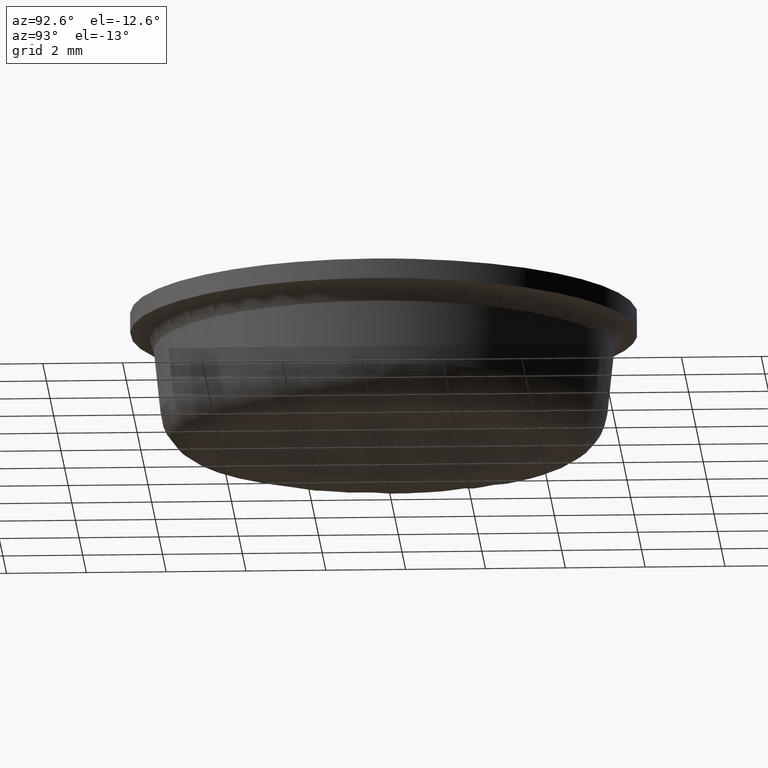
[diagram: clean part render]
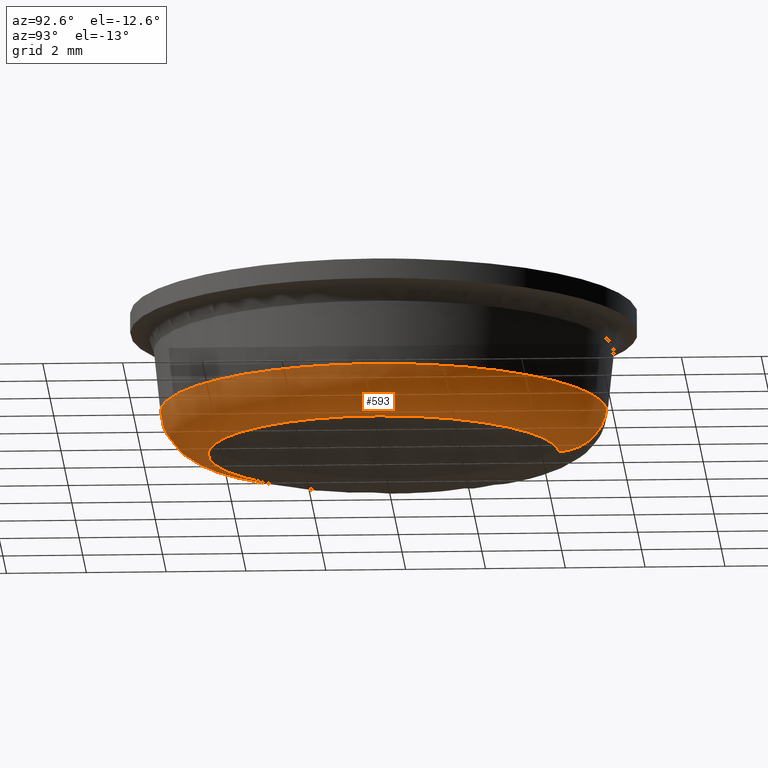
[diagram: same view with one face highlighted and labeled with its STEP entity id]
A machine part, auxiliary view. The second image highlights one B-rep face of the part: STEP entity #593.
In plain terms, the highlighted face is a freeform B-spline surface patch.
Its self-contained STEP definition (entity closure, byte-faithful):
#244=CARTESIAN_POINT('',(0.439207102130143,-5.580712803678572,1.074564380823434));
#245=VERTEX_POINT('',#244);
#246=CARTESIAN_POINT('',(-5.205353386921967,-2.059503371275750,1.074564162696577));
#247=VERTEX_POINT('',#246);
#248=CARTESIAN_POINT('',(0.439207102130142,-5.580712803678572,1.074564380823434));
#249=CARTESIAN_POINT('',(0.219942547773884,-5.597969123065714,1.074564375023362));
#250=CARTESIAN_POINT('',(-1.954018E-009,-5.597969125184395,1.074564368904969));
#251=CARTESIAN_POINT('',(-3.805355849520708,-5.597969161840955,1.074564263047052));
#252=CARTESIAN_POINT('',(-5.205353386921967,-2.059503371275750,1.074564162696577));
#260=(BOUNDED_CURVE()B_SPLINE_CURVE(2,(#248,#249,#250,#251,#252),.UNSPECIFIED.,.F.,.U.)B_SPLINE_CURVE_WITH_KNOTS((3,2,3),(0.736331438645305,0.750000000000000,0.937532633986745),.UNSPECIFIED.)CURVE()GEOMETRIC_REPRESENTATION_ITEM()RATIONAL_B_SPLINE_CURVE((0.969723644193632,0.983986284273097,1.0,0.780291852796229,0.890203286020223))REPRESENTATION_ITEM(''));
#261=EDGE_CURVE('',#245,#247,#260,.T.);
#321=CARTESIAN_POINT('',(-5.597969254135790,0.0,1.074565650878980));
#322=VERTEX_POINT('',#321);
#323=CARTESIAN_POINT('',(-5.205353386921967,-2.059503371275750,1.074564162696577));
#324=CARTESIAN_POINT('',(-5.597969181413372,-1.067175052558030,1.074564906787779));
#325=CARTESIAN_POINT('',(-5.597969254135790,0.0,1.074565650878980));
#333=(BOUNDED_CURVE()B_SPLINE_CURVE(2,(#323,#324,#325),.UNSPECIFIED.,.F.,.U.)B_SPLINE_CURVE_WITH_KNOTS((3,3),(0.937532633986745,1.0),.UNSPECIFIED.)CURVE()GEOMETRIC_REPRESENTATION_ITEM()RATIONAL_B_SPLINE_CURVE((0.890203286020223,0.926814928390319,1.0))REPRESENTATION_ITEM(''));
#334=EDGE_CURVE('',#247,#322,#333,.T.);
#413=CARTESIAN_POINT('',(5.597969254135790,0.0,1.074565650878980));
#414=VERTEX_POINT('',#413);
#415=CARTESIAN_POINT('',(5.597969254135790,0.0,1.074565650878980));
#416=CARTESIAN_POINT('',(5.597969248899088,-5.174713663581082,1.074565015851207));
#417=CARTESIAN_POINT('',(0.439207102130142,-5.580712803678572,1.074564380823434));
#425=(BOUNDED_CURVE()B_SPLINE_CURVE(2,(#415,#416,#417),.UNSPECIFIED.,.F.,.U.)B_SPLINE_CURVE_WITH_KNOTS((3,3),(0.500000000000000,0.736331438645305),.UNSPECIFIED.)CURVE()GEOMETRIC_REPRESENTATION_ITEM()RATIONAL_B_SPLINE_CURVE((1.0,0.723120496913451,0.969723644193632))REPRESENTATION_ITEM(''));
#426=EDGE_CURVE('',#414,#245,#425,.T.);
#428=CARTESIAN_POINT('',(0.172060482457668,5.595324383859992,1.074565650872323));
#429=VERTEX_POINT('',#428);
#430=CARTESIAN_POINT('',(0.172060482457668,5.595324383859992,1.074565650872324));
#431=CARTESIAN_POINT('',(5.597969254135790,5.428473560390438,1.074565650878980));
#432=CARTESIAN_POINT('',(5.597969254135790,0.0,1.074565650878980));
#440=(BOUNDED_CURVE()B_SPLINE_CURVE(2,(#430,#431,#432),.UNSPECIFIED.,.F.,.U.)B_SPLINE_CURVE_WITH_KNOTS((3,3),(0.255400348391136,0.500000000000000),.UNSPECIFIED.)CURVE()GEOMETRIC_REPRESENTATION_ITEM()RATIONAL_B_SPLINE_CURVE((0.987619536403035,0.713433682878522,1.0))REPRESENTATION_ITEM(''));
#441=EDGE_CURVE('',#429,#414,#440,.T.);
#443=CARTESIAN_POINT('',(-5.576325316993973,0.491788297230194,1.074565650871256));
#444=VERTEX_POINT('',#443);
#460=CARTESIAN_POINT('',(-5.597969254135790,0.0,1.074565650878980));
#461=CARTESIAN_POINT('',(-5.597969254135791,0.246370430805746,1.074565650878981));
#462=CARTESIAN_POINT('',(-5.576325316993973,0.491788297230194,1.074565650871256));
#470=(BOUNDED_CURVE()B_SPLINE_CURVE(2,(#460,#461,#462),.UNSPECIFIED.,.F.,.U.)B_SPLINE_CURVE_WITH_KNOTS((3,3),(0.0,0.015281545143967),.UNSPECIFIED.)CURVE()GEOMETRIC_REPRESENTATION_ITEM()RATIONAL_B_SPLINE_CURVE((1.0,0.982096556217361,0.966381850709897))REPRESENTATION_ITEM(''));
#471=EDGE_CURVE('',#322,#444,#470,.T.);
#476=CARTESIAN_POINT('',(0.172235242224354,5.600997425895850,1.153584225931490));
#477=CARTESIAN_POINT('',(0.332533227517787,5.596068132017324,1.153584225931490));
#478=CARTESIAN_POINT('',(0.492286917178810,5.581979105544069,1.153584225931490));
#479=CARTESIAN_POINT('',(6.074266022722879,5.089692188365259,1.153584225931490));
#480=CARTESIAN_POINT('',(5.581979105544069,-0.492286917178810,1.153584225931490));
#481=CARTESIAN_POINT('',(5.089692188365261,-6.074266022722878,1.153584225931490));
#482=CARTESIAN_POINT('',(-0.492286917178808,-5.581979105544069,1.153584225931490));
#483=CARTESIAN_POINT('',(-6.074266022722878,-5.089692188365261,1.153584225931490));
#484=CARTESIAN_POINT('',(-5.581979105544069,0.492286917178808,1.153584225931490));
#485=CARTESIAN_POINT('',(0.170769205533592,5.553322701343651,-0.078623586344907));
#486=CARTESIAN_POINT('',(0.329702762009436,5.548435364764878,-0.078623586344907));
#487=CARTESIAN_POINT('',(0.488096655803463,5.534466261656202,-0.078623586344907));
#488=CARTESIAN_POINT('',(6.022562917459667,5.046369605852740,-0.078623586344907));
#489=CARTESIAN_POINT('',(5.534466261656202,-0.488096655803463,-0.078623586344907));
#490=CARTESIAN_POINT('',(5.046369605852740,-6.022562917459664,-0.078623586344907));
#491=CARTESIAN_POINT('',(-0.488096655803461,-5.534466261656202,-0.078623586344907));
#492=CARTESIAN_POINT('',(-6.022562917459664,-5.046369605852740,-0.078623586344907));
#493=CARTESIAN_POINT('',(-5.534466261656202,0.488096655803461,-0.078623586344907));
#494=CARTESIAN_POINT('',(0.132949670745106,4.323451774446090,0.002606378693927));
#495=CARTESIAN_POINT('',(0.256684883647150,4.319646815660119,0.002606378693927));
#496=CARTESIAN_POINT('',(0.379999950682516,4.308771390825180,0.002606378693927));
#497=CARTESIAN_POINT('',(4.688771341507696,3.928771440142665,0.002606378693927));
#498=CARTESIAN_POINT('',(4.308771390825180,-0.379999950682516,0.002606378693927));
#499=CARTESIAN_POINT('',(3.928771440142667,-4.688771341507696,0.002606378693927));
#500=CARTESIAN_POINT('',(-0.379999950682515,-4.308771390825180,0.002606378693927));
#501=CARTESIAN_POINT('',(-4.688771341507696,-3.928771440142667,0.002606378693927));
#502=CARTESIAN_POINT('',(-4.308771390825181,0.379999950682514,0.002606378693927));
#510=(BOUNDED_SURFACE()B_SPLINE_SURFACE(2,2,((#476,#485,#494),(#477,#486,#495),(#478,#487,#496),(#479,#488,#497),(#480,#489,#498),(#481,#490,#499),(#482,#491,#500),(#483,#492,#501),(#484,#493,#502)),.UNSPECIFIED.,.F.,.F.,.U.)B_SPLINE_SURFACE_WITH_KNOTS((3,2,2,2,3),(3,3),(0.0,0.371376566220750,9.655799576055260,18.940222585889771,28.224645595724279),(0.0,2.026617559123590),.UNSPECIFIED.)GEOMETRIC_REPRESENTATION_ITEM()RATIONAL_B_SPLINE_SURFACE(((0.895201277689932,0.624863627610096,0.896744397890475),(0.905072208284873,0.631753682006978,0.906632343689459),(0.915801479780918,0.639242870947742,0.917380109970974),(0.647569436573762,0.452012968872305,0.648685696686136),(0.915801479780918,0.639242870947742,0.917380109970974),(0.647569436573762,0.452012968872305,0.648685696686136),(0.915801479780918,0.639242870947742,0.917380109970974),(0.647569436573762,0.452012968872305,0.648685696686136),(0.915801479780918,0.639242870947742,0.917380109970974)))REPRESENTATION_ITEM('')SURFACE());
#511=CARTESIAN_POINT('',(0.135379056133082,4.402461987626563,1.718965E-014));
#512=VERTEX_POINT('',#511);
#513=CARTESIAN_POINT('',(4.404543000000000,0.0,0.0));
#514=VERTEX_POINT('',#513);
#515=CARTESIAN_POINT('',(0.135379056133082,4.402461987626563,1.718965E-014));
#516=CARTESIAN_POINT('',(4.404542999999999,4.271181947444160,1.744104E-014));
#517=CARTESIAN_POINT('',(4.404543000000000,0.0,0.0));
#525=(BOUNDED_CURVE()B_SPLINE_CURVE(2,(#515,#516,#517),.UNSPECIFIED.,.F.,.U.)B_SPLINE_CURVE_WITH_KNOTS((3,3),(0.255400348394716,0.500000000000000),.UNSPECIFIED.)CURVE()GEOMETRIC_REPRESENTATION_ITEM()RATIONAL_B_SPLINE_CURVE((0.987619536395008,0.713433682882717,1.0))REPRESENTATION_ITEM(''));
#526=EDGE_CURVE('',#512,#514,#525,.T.);
#527=ORIENTED_EDGE('',*,*,#526,.F.);
#528=CARTESIAN_POINT('',(0.172060482457668,5.595324383859992,1.074565650872323));
#529=CARTESIAN_POINT('',(0.168589083934681,5.482436168505277,5.084885E-010));
#530=CARTESIAN_POINT('',(0.135379056133082,4.402461987626563,1.718965E-014));
#538=(BOUNDED_CURVE()B_SPLINE_CURVE(2,(#528,#529,#530),.UNSPECIFIED.,.F.,.U.)B_SPLINE_CURVE_WITH_KNOTS((3,3),(-1.716182547817152,-0.279319866540683),.UNSPECIFIED.)CURVE()GEOMETRIC_REPRESENTATION_ITEM()RATIONAL_B_SPLINE_CURVE((0.871765690212836,0.648369284698138,0.873168606925923))REPRESENTATION_ITEM(''));
#539=EDGE_CURVE('',#429,#512,#538,.T.);
#540=ORIENTED_EDGE('',*,*,#539,.F.);
#541=ORIENTED_EDGE('',*,*,#441,.T.);
#542=ORIENTED_EDGE('',*,*,#426,.T.);
#543=ORIENTED_EDGE('',*,*,#261,.T.);
#544=ORIENTED_EDGE('',*,*,#334,.T.);
#545=ORIENTED_EDGE('',*,*,#471,.T.);
#546=CARTESIAN_POINT('',(-4.387513315526101,0.386944372883419,1.721139E-014));
#547=VERTEX_POINT('',#546);
#548=CARTESIAN_POINT('',(-5.576325316993973,0.491788297230194,1.074565650871256));
#549=CARTESIAN_POINT('',(-5.463820416462325,0.481866244566803,5.675014E-010));
#550=CARTESIAN_POINT('',(-4.387513315526101,0.386944372883420,1.721139E-014));
#558=(BOUNDED_CURVE()B_SPLINE_CURVE(2,(#548,#549,#550),.UNSPECIFIED.,.F.,.U.)B_SPLINE_CURVE_WITH_KNOTS((3,3),(-1.716182547815233,-0.279319866599372),.UNSPECIFIED.)CURVE()GEOMETRIC_REPRESENTATION_ITEM()RATIONAL_B_SPLINE_CURVE((0.891826615763429,0.663289449720057,0.893261816141963))REPRESENTATION_ITEM(''));
#559=EDGE_CURVE('',#444,#547,#558,.T.);
#560=ORIENTED_EDGE('',*,*,#559,.T.);
#561=CARTESIAN_POINT('',(-4.404543000000000,0.0,1.798561E-014));
#562=VERTEX_POINT('',#561);
#563=CARTESIAN_POINT('',(-4.404543000000000,0.0,1.798561E-014));
#564=CARTESIAN_POINT('',(-4.404543000000001,0.193846930451076,1.798561E-014));
#565=CARTESIAN_POINT('',(-4.387513315526101,0.386944372883419,1.721139E-014));
#573=(BOUNDED_CURVE()B_SPLINE_CURVE(2,(#563,#564,#565),.UNSPECIFIED.,.F.,.U.)B_SPLINE_CURVE_WITH_KNOTS((3,3),(0.0,0.015281545147581),.UNSPECIFIED.)CURVE()GEOMETRIC_REPRESENTATION_ITEM()RATIONAL_B_SPLINE_CURVE((1.0,0.982096556213127,0.966381850702465))REPRESENTATION_ITEM(''));
#574=EDGE_CURVE('',#562,#547,#573,.T.);
#575=ORIENTED_EDGE('',*,*,#574,.F.);
#576=CARTESIAN_POINT('',(4.404543000000000,0.0,0.0));
#577=CARTESIAN_POINT('',(4.404543000000001,-4.404543000000001,1.798561E-014));
#578=CARTESIAN_POINT('',(0.0,-4.404543000000000,1.798561E-014));
#579=CARTESIAN_POINT('',(-4.404543000000001,-4.404543000000001,1.798561E-014));
#580=CARTESIAN_POINT('',(-4.404543000000000,0.0,1.798561E-014));
#588=(BOUNDED_CURVE()B_SPLINE_CURVE(2,(#576,#577,#578,#579,#580),.UNSPECIFIED.,.F.,.U.)B_SPLINE_CURVE_WITH_KNOTS((3,2,3),(0.500000000000000,0.750000000000000,1.0),.UNSPECIFIED.)CURVE()GEOMETRIC_REPRESENTATION_ITEM()RATIONAL_B_SPLINE_CURVE((1.0,0.707106781186547,1.0,0.707106781186547,1.0))REPRESENTATION_ITEM(''));
#589=EDGE_CURVE('',#514,#562,#588,.T.);
#590=ORIENTED_EDGE('',*,*,#589,.F.);
#591=EDGE_LOOP('',(#527,#540,#541,#542,#543,#544,#545,#560,#575,#590));
#592=FACE_OUTER_BOUND('',#591,.T.);
#593=ADVANCED_FACE('',(#592),#510,.T.);